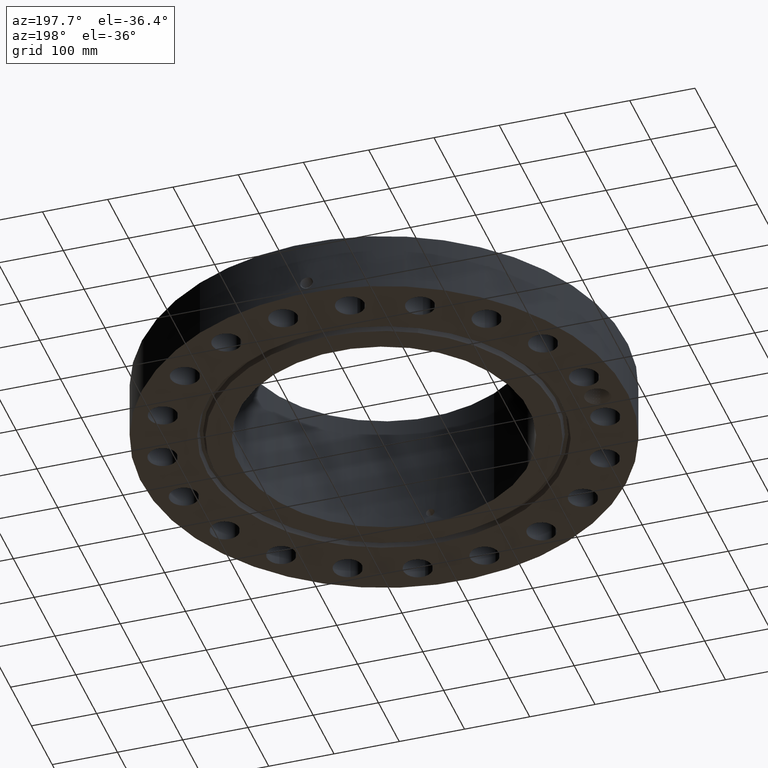
[diagram: clean part render]
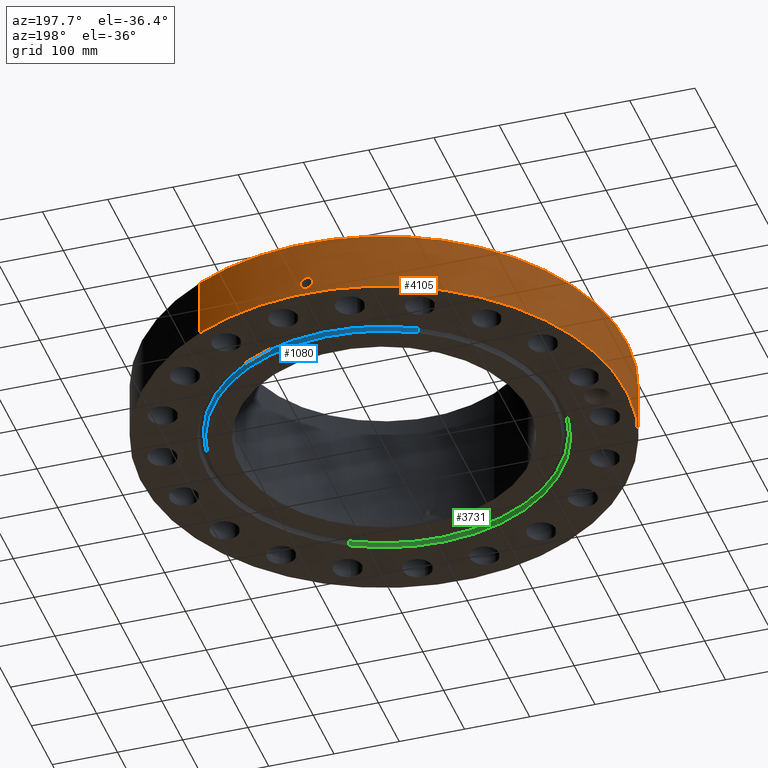
[diagram: same view with three faces highlighted in distinct colors, each labeled with its STEP entity id]
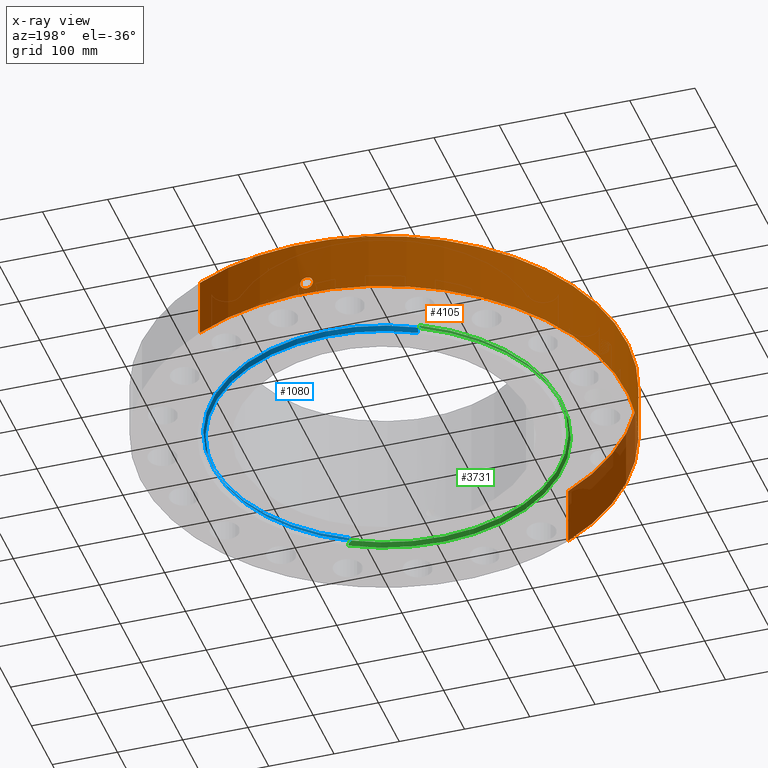
[diagram: x-ray of the same camera — body ghosted, the three highlighted faces saturated]
A machine part, auxiliary view with three faces highlighted in distinct colors.
The next image is the same camera in x-ray (body ghosted, the three faces saturated) — at least one of them is partly hidden behind the body in this view.
Their STEP definitions:

[orange] entity #4105 — the highlighted cylindrical surface (partial cylindrical patch) has radius 371.475 mm, axis along (0, 0, -1).
#2927=AXIS2_PLACEMENT_3D('Circle Axis2P3D',#2925,#2926,$) ;
#3991=AXIS2_PLACEMENT_3D('Cylinder Axis2P3D',#3988,#3989,#3990) ;
#3995=AXIS2_PLACEMENT_3D('Circle Axis2P3D',#3993,#3994,$) ;
#2920=CARTESIAN_POINT('Vertex',(7.01159850211,12.8346449677,3.56200000001)) ;
#2922=CARTESIAN_POINT('Vertex',(-7.01159850211,-12.8346449677,3.56200000001)) ;
#2925=CARTESIAN_POINT('Axis2P3D Location',(0.,0.,3.56200000001)) ;
#3988=CARTESIAN_POINT('Axis2P3D Location',(0.,0.,3.78100000002)) ;
#3993=CARTESIAN_POINT('Axis2P3D Location',(0.,0.,1.67844740731E-015)) ;
#3997=CARTESIAN_POINT('Vertex',(-7.01159850211,-12.8346449677,2.23792987641E-015)) ;
#3999=CARTESIAN_POINT('Vertex',(7.01159850211,12.8346449677,2.23792987641E-015)) ;
#4002=CARTESIAN_POINT('Line Origine',(-7.01159850211,-12.8346449677,1.78100000001)) ;
#4007=CARTESIAN_POINT('Line Origine',(7.01159850211,12.8346449677,1.78100000001)) ;
#4019=CARTESIAN_POINT('Control Point',(-0.000716086752899,14.6249999825,1.1041184612)) ;
#4020=CARTESIAN_POINT('Control Point',(-0.0190203187305,14.6249990863,1.10408148988)) ;
#4021=CARTESIAN_POINT('Control Point',(-0.0373213430737,14.6249635537,1.10262130561)) ;
#4022=CARTESIAN_POINT('Control Point',(-0.0553996221664,14.6248950726,1.09975560668)) ;
#4023=CARTESIAN_POINT('Vertex',(-0.000715719218029,14.6249999825,1.10411851049)) ;
#4025=CARTESIAN_POINT('Vertex',(-0.0553907382761,14.6248953593,1.09975703323)) ;
#4029=CARTESIAN_POINT('Control Point',(-0.0553906426159,14.6248951066,1.09975648393)) ;
#4030=CARTESIAN_POINT('Control Point',(-0.0957910872331,14.6247420931,1.09531626056)) ;
#4031=CARTESIAN_POINT('Control Point',(-0.135547313115,14.6244176887,1.08352583264)) ;
#4032=CARTESIAN_POINT('Control Point',(-0.172161792286,14.6239866425,1.06517074421)) ;
#4033=CARTESIAN_POINT('Vertex',(-0.172161792286,14.6239866425,1.06517074421)) ;
#4037=CARTESIAN_POINT('Control Point',(-0.0309704717696,14.6249672079,0.341185931315)) ;
#4038=CARTESIAN_POINT('Control Point',(-0.096097050024,14.624829293,0.349430397417)) ;
#4039=CARTESIAN_POINT('Control Point',(-0.159165957888,14.6243332142,0.371292325496)) ;
#4040=CARTESIAN_POINT('Control Point',(-0.216216294241,14.6235308002,0.406104490808)) ;
#4041=CARTESIAN_POINT('Control Point',(-0.288565984652,14.6222181906,0.474194043668)) ;
#4042=CARTESIAN_POINT('Control Point',(-0.336122439635,14.6211483161,0.558637787358)) ;
#4043=CARTESIAN_POINT('Control Point',(-0.349159052226,14.6208369788,0.588701529226)) ;
#4044=CARTESIAN_POINT('Control Point',(-0.371366298723,14.620290059,0.658954862142)) ;
#4045=CARTESIAN_POINT('Control Point',(-0.376852433391,14.6201424353,0.732133985846)) ;
#4046=CARTESIAN_POINT('Control Point',(-0.374588858488,14.620202394,0.772952421597)) ;
#4047=CARTESIAN_POINT('Control Point',(-0.356196992636,14.620681159,0.870678338789)) ;
#4048=CARTESIAN_POINT('Control Point',(-0.307903907605,14.6218049341,0.957874328975)) ;
#4049=CARTESIAN_POINT('Control Point',(-0.269657987085,14.6226140453,1.00315422223)) ;
#4050=CARTESIAN_POINT('Control Point',(-0.223443498129,14.6233829254,1.03946287241)) ;
#4051=CARTESIAN_POINT('Control Point',(-0.172161792286,14.6239866425,1.06517074421)) ;
#4052=CARTESIAN_POINT('Vertex',(-0.0309704717696,14.6249672079,0.341185931315)) ;
#4056=CARTESIAN_POINT('Control Point',(-0.0309704717696,14.6249672079,0.341185931315)) ;
#4057=CARTESIAN_POINT('Control Point',(-0.0206420517921,14.6249890798,0.340874084726)) ;
#4058=CARTESIAN_POINT('Control Point',(-0.0103062211378,14.625000002,0.340937171896)) ;
#4059=CARTESIAN_POINT('Control Point',(2.72878356085E-006,14.6250000001,0.341374667805)) ;
#4060=CARTESIAN_POINT('Vertex',(2.72878354058E-006,14.6250000001,0.341374667805)) ;
#4064=CARTESIAN_POINT('Control Point',(0.192662631068,14.6237309231,0.397344435508)) ;
#4065=CARTESIAN_POINT('Control Point',(0.14901987016,14.6243059015,0.371999869208)) ;
#4066=CARTESIAN_POINT('Control Point',(0.101119075303,14.6247640417,0.353765749113)) ;
#4067=CARTESIAN_POINT('Control Point',(0.0508066407623,14.6249999906,0.343530706904)) ;
#4068=CARTESIAN_POINT('Control Point',(2.72878350888E-006,14.6250000001,0.341374667805)) ;
#4069=CARTESIAN_POINT('Vertex',(0.192662631068,14.6237309231,0.397344435508)) ;
#4073=CARTESIAN_POINT('Control Point',(0.192662631068,14.6237309231,0.397344435508)) ;
#4074=CARTESIAN_POINT('Control Point',(0.249518043689,14.6229818726,0.430361953641)) ;
#4075=CARTESIAN_POINT('Control Point',(0.299619064502,14.6220454516,0.47469139639)) ;
#4076=CARTESIAN_POINT('Control Point',(0.339823000175,14.6210933496,0.528791236332)) ;
#4077=CARTESIAN_POINT('Control Point',(0.384112236462,14.6199651971,0.626956102287)) ;
#4078=CARTESIAN_POINT('Control Point',(0.392725031475,14.6197247345,0.732244386193)) ;
#4079=CARTESIAN_POINT('Control Point',(0.390620686244,14.6197828204,0.772393678274)) ;
#4080=CARTESIAN_POINT('Control Point',(0.376487312062,14.6201662088,0.847281981476)) ;
#4081=CARTESIAN_POINT('Control Point',(0.344392716063,14.6209577611,0.915701625589)) ;
#4082=CARTESIAN_POINT('Control Point',(0.325332832521,14.6214042256,0.946122653922)) ;
#4083=CARTESIAN_POINT('Control Point',(0.263575029124,14.6227270884,1.02259978851)) ;
#4084=CARTESIAN_POINT('Control Point',(0.180406457805,14.6240432514,1.07561246052)) ;
#4085=CARTESIAN_POINT('Control Point',(0.121571567806,14.6246891249,1.09767108549)) ;
#4086=CARTESIAN_POINT('Control Point',(0.0603045228641,14.6250001067,1.10711089422)) ;
#4087=CARTESIAN_POINT('Control Point',(-2.58579355531E-005,14.625,1.1041529843)) ;
#4088=CARTESIAN_POINT('Vertex',(-2.58579355479E-005,14.625,1.1041529843)) ;
#4092=CARTESIAN_POINT('Control Point',(-0.000715719208403,14.6249999825,1.10411851047)) ;
#4093=CARTESIAN_POINT('Control Point',(-0.000370813091107,14.6249999994,1.10413607165)) ;
#4094=CARTESIAN_POINT('Control Point',(-2.58579406625E-005,14.625,1.1041529843)) ;
#2926=DIRECTION('Axis2P3D Direction',(0.,0.,-0.0393700787402)) ;
#3989=DIRECTION('Axis2P3D Direction',(0.,0.,-0.0393700787402)) ;
#3990=DIRECTION('Axis2P3D XDirection',(0.0188750212049,0.0345504945626,0.)) ;
#3994=DIRECTION('Axis2P3D Direction',(0.,0.,-0.0393700787402)) ;
#4003=DIRECTION('Vector Direction',(0.,0.,-0.0393700787402)) ;
#4008=DIRECTION('Vector Direction',(0.,0.,-0.0393700787402)) ;
#4004=VECTOR('Line Direction',#4003,0.0393700787402) ;
#4009=VECTOR('Line Direction',#4008,0.0393700787402) ;
#4013=ORIENTED_EDGE('',*,*,#4001,.F.) ;
#4014=ORIENTED_EDGE('',*,*,#4006,.T.) ;
#4015=ORIENTED_EDGE('',*,*,#2929,.T.) ;
#4016=ORIENTED_EDGE('',*,*,#4011,.F.) ;
#4097=ORIENTED_EDGE('',*,*,#4027,.T.) ;
#4098=ORIENTED_EDGE('',*,*,#4035,.T.) ;
#4099=ORIENTED_EDGE('',*,*,#4054,.F.) ;
#4100=ORIENTED_EDGE('',*,*,#4062,.T.) ;
#4101=ORIENTED_EDGE('',*,*,#4071,.F.) ;
#4102=ORIENTED_EDGE('',*,*,#4090,.T.) ;
#4103=ORIENTED_EDGE('',*,*,#4095,.F.) ;
#4104=FACE_BOUND('',#4096,.T.) ;
#4105=ADVANCED_FACE('PartBody',(#4017,#4104),#3992,.T.) ;
#4018=B_SPLINE_CURVE_WITH_KNOTS('',3,(#4019,#4020,#4021,#4022),.UNSPECIFIED.,.F.,.U.,(4,4),(34.6165608224,36.6472417518),.UNSPECIFIED.) ;
#4028=B_SPLINE_CURVE_WITH_KNOTS('',3,(#4029,#4030,#4031,#4032),.UNSPECIFIED.,.F.,.U.,(4,4),(0.,4.56688664241),.UNSPECIFIED.) ;
#4036=B_SPLINE_CURVE_WITH_KNOTS('',5,(#4037,#4038,#4039,#4040,#4041,#4042,#4043,#4044,#4045,#4046,#4047,#4048,#4049,#4050,#4051),.UNSPECIFIED.,.F.,.U.,(6,3,3,3,6),(0.,11.4086061041,17.2512745572,24.6138259321,35.2743509118),.UNSPECIFIED.) ;
#4055=B_SPLINE_CURVE_WITH_KNOTS('',3,(#4056,#4057,#4058,#4059),.UNSPECIFIED.,.F.,.U.,(4,4),(0.,1.07740583904),.UNSPECIFIED.) ;
#4063=B_SPLINE_CURVE_WITH_KNOTS('',4,(#4064,#4065,#4066,#4067,#4068),.UNSPECIFIED.,.F.,.U.,(5,5),(0.,7.07947066033),.UNSPECIFIED.) ;
#4072=B_SPLINE_CURVE_WITH_KNOTS('',5,(#4073,#4074,#4075,#4076,#4077,#4078,#4079,#4080,#4081,#4082,#4083,#4084,#4085,#4086,#4087),.UNSPECIFIED.,.F.,.U.,(6,3,3,3,6),(0.,11.5284358766,18.6014747726,25.0195536907,36.296553992),.UNSPECIFIED.) ;
#4091=B_SPLINE_CURVE_WITH_KNOTS('',2,(#4092,#4093,#4094),.UNSPECIFIED.,.F.,.U.,(3,3),(1.02315573588,1.04894744785),.UNSPECIFIED.) ;
#2928=CIRCLE('generated circle',#2927,14.6250000001) ;
#3996=CIRCLE('generated circle',#3995,14.6250000001) ;
#3992=CYLINDRICAL_SURFACE('generated cylinder',#3991,14.6250000001) ;
#2929=EDGE_CURVE('',#2923,#2921,#2928,.T.) ;
#4001=EDGE_CURVE('',#3998,#4000,#3996,.T.) ;
#4006=EDGE_CURVE('',#3998,#2923,#4005,.F.) ;
#4011=EDGE_CURVE('',#4000,#2921,#4010,.F.) ;
#4027=EDGE_CURVE('',#4024,#4026,#4018,.T.) ;
#4035=EDGE_CURVE('',#4026,#4034,#4028,.T.) ;
#4054=EDGE_CURVE('',#4053,#4034,#4036,.T.) ;
#4062=EDGE_CURVE('',#4053,#4061,#4055,.T.) ;
#4071=EDGE_CURVE('',#4070,#4061,#4063,.T.) ;
#4090=EDGE_CURVE('',#4070,#4089,#4072,.T.) ;
#4095=EDGE_CURVE('',#4024,#4089,#4091,.T.) ;
#4012=EDGE_LOOP('',(#4013,#4014,#4015,#4016)) ;
#4096=EDGE_LOOP('',(#4097,#4098,#4099,#4100,#4101,#4102,#4103)) ;
#4017=FACE_OUTER_BOUND('',#4012,.T.) ;
#4005=LINE('Line',#4002,#4004) ;
#4010=LINE('Line',#4007,#4009) ;
#2921=VERTEX_POINT('',#2920) ;
#2923=VERTEX_POINT('',#2922) ;
#3998=VERTEX_POINT('',#3997) ;
#4000=VERTEX_POINT('',#3999) ;
#4024=VERTEX_POINT('',#4023) ;
#4026=VERTEX_POINT('',#4025) ;
#4034=VERTEX_POINT('',#4033) ;
#4053=VERTEX_POINT('',#4052) ;
#4061=VERTEX_POINT('',#4060) ;
#4070=VERTEX_POINT('',#4069) ;
#4089=VERTEX_POINT('',#4088) ;

[blue] entity #1080 — the highlighted conical surface has half-angle 23 deg.
#602=AXIS2_PLACEMENT_3D('Circle Axis2P3D',#600,#601,$) ;
#1053=AXIS2_PLACEMENT_3D('Cone Axis2P3D',#1050,#1051,#1052) ;
#1064=AXIS2_PLACEMENT_3D('Circle Axis2P3D',#1062,#1063,$) ;
#600=CARTESIAN_POINT('Axis2P3D Location',(0.,0.,0.)) ;
#604=CARTESIAN_POINT('Vertex',(-4.92154286656,9.00882378912,-3.49676543189E-017)) ;
#606=CARTESIAN_POINT('Vertex',(4.92154286656,-9.00882378912,0.)) ;
#1050=CARTESIAN_POINT('Axis2P3D Location',(0.,0.,-0.0600000000002)) ;
#1055=CARTESIAN_POINT('Line Origine',(-4.95142967067,9.06353121709,0.146860966928)) ;
#1059=CARTESIAN_POINT('Vertex',(-4.98131647478,9.11823864505,0.293721933856)) ;
#1062=CARTESIAN_POINT('Axis2P3D Location',(0.,0.,0.293721933856)) ;
#1066=CARTESIAN_POINT('Vertex',(4.98131647478,-9.11823864505,0.293721933856)) ;
#1069=CARTESIAN_POINT('Line Origine',(4.95142967067,-9.06353121709,0.146860966928)) ;
#601=DIRECTION('Axis2P3D Direction',(0.,0.,-0.0393700787402)) ;
#1051=DIRECTION('Axis2P3D Direction',(0.,0.,0.0393700787402)) ;
#1052=DIRECTION('Axis2P3D XDirection',(-0.0188750212049,0.0345504945626,0.)) ;
#1056=DIRECTION('Vector Direction',(-0.00737505833565,0.0134999537303,0.0362403485611)) ;
#1063=DIRECTION('Axis2P3D Direction',(0.,0.,0.0393700787402)) ;
#1070=DIRECTION('Vector Direction',(0.00737505833565,-0.0134999537303,0.0362403485611)) ;
#1057=VECTOR('Line Direction',#1056,0.0393700787402) ;
#1071=VECTOR('Line Direction',#1070,0.0393700787402) ;
#1075=ORIENTED_EDGE('',*,*,#1061,.F.) ;
#1076=ORIENTED_EDGE('',*,*,#1068,.F.) ;
#1077=ORIENTED_EDGE('',*,*,#1073,.T.) ;
#1078=ORIENTED_EDGE('',*,*,#608,.F.) ;
#1080=ADVANCED_FACE('PartBody',(#1079),#1054,.T.) ;
#603=CIRCLE('generated circle',#602,10.2655) ;
#1065=CIRCLE('generated circle',#1064,10.3901775639) ;
#1054=CONICAL_SURFACE('Cone',#1053,10.2400315111,0.401425727959) ;
#608=EDGE_CURVE('',#605,#607,#603,.T.) ;
#1061=EDGE_CURVE('',#1060,#605,#1058,.F.) ;
#1068=EDGE_CURVE('',#1067,#1060,#1065,.T.) ;
#1073=EDGE_CURVE('',#1067,#607,#1072,.F.) ;
#1074=EDGE_LOOP('',(#1075,#1076,#1077,#1078)) ;
#1079=FACE_OUTER_BOUND('',#1074,.T.) ;
#1058=LINE('Line',#1055,#1057) ;
#1072=LINE('Line',#1069,#1071) ;
#605=VERTEX_POINT('',#604) ;
#607=VERTEX_POINT('',#606) ;
#1060=VERTEX_POINT('',#1059) ;
#1067=VERTEX_POINT('',#1066) ;

[green] entity #3731 — the highlighted conical surface has half-angle 23 deg.
#2635=AXIS2_PLACEMENT_3D('Circle Axis2P3D',#2633,#2634,$) ;
#3692=AXIS2_PLACEMENT_3D('Cone Axis2P3D',#3689,#3690,#3691) ;
#3722=AXIS2_PLACEMENT_3D('Circle Axis2P3D',#3720,#3721,$) ;
#2611=CARTESIAN_POINT('Vertex',(5.08661983595,-9.31099515472,0.293721933856)) ;
#2613=CARTESIAN_POINT('Vertex',(-5.08661983595,9.31099515472,0.293721933856)) ;
#2633=CARTESIAN_POINT('Axis2P3D Location',(0.,0.,0.293721933856)) ;
#3689=CARTESIAN_POINT('Axis2P3D Location',(0.,0.,0.293721933856)) ;
#3698=CARTESIAN_POINT('Vertex',(-5.14639344417,9.42041001065,0.)) ;
#3700=CARTESIAN_POINT('Vertex',(5.14639344417,-9.42041001065,-1.60851209867E-015)) ;
#3703=CARTESIAN_POINT('Line Origine',(5.11650664006,-9.36570258269,0.146860966928)) ;
#3708=CARTESIAN_POINT('Line Origine',(-5.11650664006,9.36570258269,0.146860966928)) ;
#3720=CARTESIAN_POINT('Axis2P3D Location',(0.,0.,0.)) ;
#2634=DIRECTION('Axis2P3D Direction',(0.,0.,0.0393700787402)) ;
#3690=DIRECTION('Axis2P3D Direction',(-0.,-0.,-0.0393700787402)) ;
#3691=DIRECTION('Axis2P3D XDirection',(0.0188750212049,-0.0345504945626,0.)) ;
#3704=DIRECTION('Vector Direction',(0.00737505833565,-0.0134999537303,-0.0362403485611)) ;
#3709=DIRECTION('Vector Direction',(-0.00737505833565,0.0134999537303,-0.0362403485611)) ;
#3721=DIRECTION('Axis2P3D Direction',(0.,0.,-0.0393700787402)) ;
#3705=VECTOR('Line Direction',#3704,0.0393700787402) ;
#3710=VECTOR('Line Direction',#3709,0.0393700787402) ;
#3726=ORIENTED_EDGE('',*,*,#3724,.T.) ;
#3727=ORIENTED_EDGE('',*,*,#3712,.T.) ;
#3728=ORIENTED_EDGE('',*,*,#2637,.T.) ;
#3729=ORIENTED_EDGE('',*,*,#3707,.F.) ;
#3731=ADVANCED_FACE('PartBody',(#3730),#3693,.F.) ;
#2636=CIRCLE('generated circle',#2635,10.6098224362) ;
#3723=CIRCLE('generated circle',#3722,10.7345) ;
#3693=CONICAL_SURFACE('Cone',#3692,10.6098224362,0.401425727959) ;
#2637=EDGE_CURVE('',#2614,#2612,#2636,.T.) ;
#3707=EDGE_CURVE('',#3701,#2612,#3706,.F.) ;
#3712=EDGE_CURVE('',#3699,#2614,#3711,.F.) ;
#3724=EDGE_CURVE('',#3701,#3699,#3723,.T.) ;
#3725=EDGE_LOOP('',(#3726,#3727,#3728,#3729)) ;
#3730=FACE_OUTER_BOUND('',#3725,.T.) ;
#3706=LINE('Line',#3703,#3705) ;
#3711=LINE('Line',#3708,#3710) ;
#2612=VERTEX_POINT('',#2611) ;
#2614=VERTEX_POINT('',#2613) ;
#3699=VERTEX_POINT('',#3698) ;
#3701=VERTEX_POINT('',#3700) ;